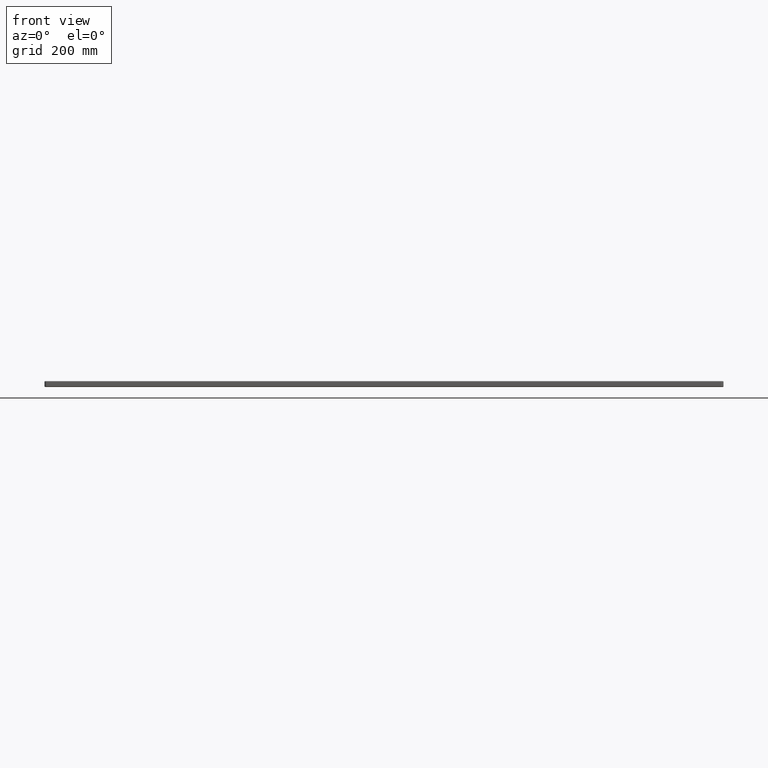
[diagram: clean part render]
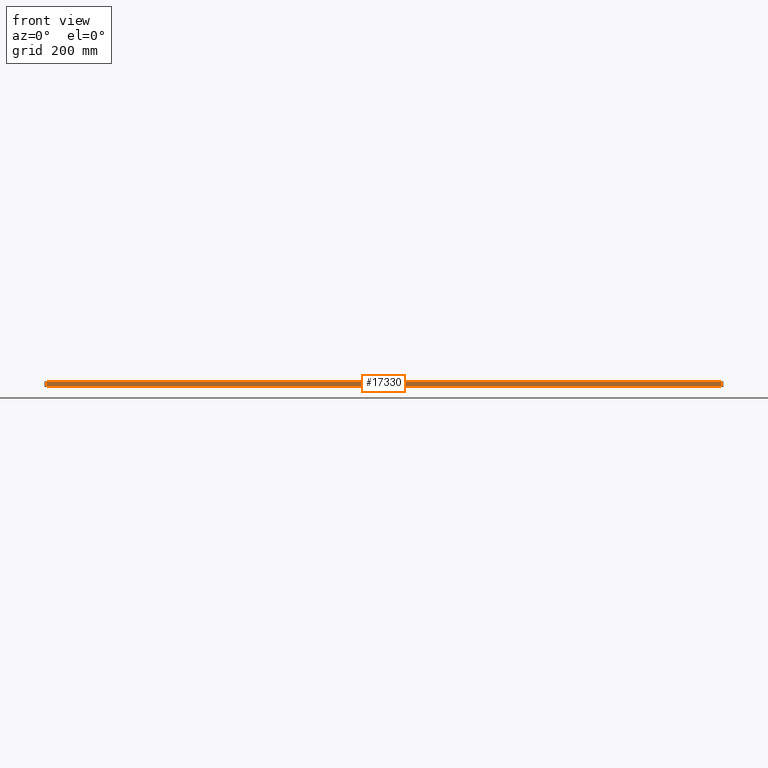
[diagram: same view with one face highlighted and labeled with its STEP entity id]
A machine part, front view. The second image highlights one B-rep face of the part: STEP entity #17330.
In plain terms, the highlighted planar face has unit normal (0, -1, 0).
Its self-contained STEP definition (entity closure, byte-faithful):
#74 = ORIENTED_EDGE ( 'NONE', *, *, #76124, .T. ) ;
#3908 = CARTESIAN_POINT ( 'NONE',  ( 5.000000000000035500, 0.0000000000000000000, -2.000000000000000000 ) ) ;
#7657 = DIRECTION ( 'NONE',  ( 0.0000000000000000000, -1.000000000000000000, 0.0000000000000000000 ) ) ;
#9752 = PLANE ( 'NONE',  #71533 ) ;
#10001 = VERTEX_POINT ( 'NONE', #30576 ) ;
#10243 = FACE_OUTER_BOUND ( 'NONE', #43746, .T. ) ;
#10494 = DIRECTION ( 'NONE',  ( 0.0000000000000000000, 0.0000000000000000000, 1.000000000000000000 ) ) ;
#13470 = DIRECTION ( 'NONE',  ( 1.000000000000000000, 0.0000000000000000000, 0.0000000000000000000 ) ) ;
#15754 = CARTESIAN_POINT ( 'NONE',  ( 5.000000000000035500, 0.0000000000000000000, -11.00000000000000000 ) ) ;
#17330 = ADVANCED_FACE ( 'NONE', ( #10243 ), #9752, .T. ) ;
#18538 = LINE ( 'NONE', #43136, #33380 ) ;
#19361 = EDGE_CURVE ( 'NONE', #10001, #44450, #54120, .T. ) ;
#22146 = CARTESIAN_POINT ( 'NONE',  ( 1495.000000000000000, 0.0000000000000000000, -11.00000000000000000 ) ) ;
#28637 = CARTESIAN_POINT ( 'NONE',  ( 5.000000000000035500, 0.0000000000000000000, -11.00000000000000000 ) ) ;
#29178 = ORIENTED_EDGE ( 'NONE', *, *, #75226, .F. ) ;
#30576 = CARTESIAN_POINT ( 'NONE',  ( 1495.000000000000000, 0.0000000000000000000, -2.000000000000003600 ) ) ;
#30750 = VECTOR ( 'NONE', #98793, 1000.000000000000000 ) ;
#32142 = ORIENTED_EDGE ( 'NONE', *, *, #19361, .T. ) ;
#33380 = VECTOR ( 'NONE', #34906, 1000.000000000000000 ) ;
#33495 = VECTOR ( 'NONE', #13470, 1000.000000000000000 ) ;
#34906 = DIRECTION ( 'NONE',  ( 0.0000000000000000000, 0.0000000000000000000, 1.000000000000000000 ) ) ;
#43136 = CARTESIAN_POINT ( 'NONE',  ( 1495.000000000000000, 0.0000000000000000000, -13.00000000000000000 ) ) ;
#43746 = EDGE_LOOP ( 'NONE', ( #29178, #74, #50982, #32142 ) ) ;
#44450 = VERTEX_POINT ( 'NONE', #101687 ) ;
#50722 = CARTESIAN_POINT ( 'NONE',  ( 5.000000000000035500, 0.0000000000000000000, -13.00000000000000000 ) ) ;
#50743 = LINE ( 'NONE', #28637, #33495 ) ;
#50960 = EDGE_CURVE ( 'NONE', #78731, #10001, #18538, .T. ) ;
#50982 = ORIENTED_EDGE ( 'NONE', *, *, #50960, .T. ) ;
#54120 = LINE ( 'NONE', #3908, #30750 ) ;
#57335 = VECTOR ( 'NONE', #10494, 1000.000000000000000 ) ;
#57642 = VERTEX_POINT ( 'NONE', #15754 ) ;
#70603 = DIRECTION ( 'NONE',  ( 0.0000000000000000000, -0.0000000000000000000, -1.000000000000000000 ) ) ;
#71533 = AXIS2_PLACEMENT_3D ( 'NONE', #88855, #7657, #70603 ) ;
#75226 = EDGE_CURVE ( 'NONE', #57642, #44450, #75816, .T. ) ;
#75816 = LINE ( 'NONE', #50722, #57335 ) ;
#76124 = EDGE_CURVE ( 'NONE', #57642, #78731, #50743, .T. ) ;
#78731 = VERTEX_POINT ( 'NONE', #22146 ) ;
#88855 = CARTESIAN_POINT ( 'NONE',  ( 5.000000000000035500, 0.0000000000000000000, -13.00000000000000000 ) ) ;
#98793 = DIRECTION ( 'NONE',  ( -1.000000000000000000, -0.0000000000000000000, 0.0000000000000000000 ) ) ;
#101687 = CARTESIAN_POINT ( 'NONE',  ( 5.000000000000035500, 0.0000000000000000000, -2.000000000000001800 ) ) ;